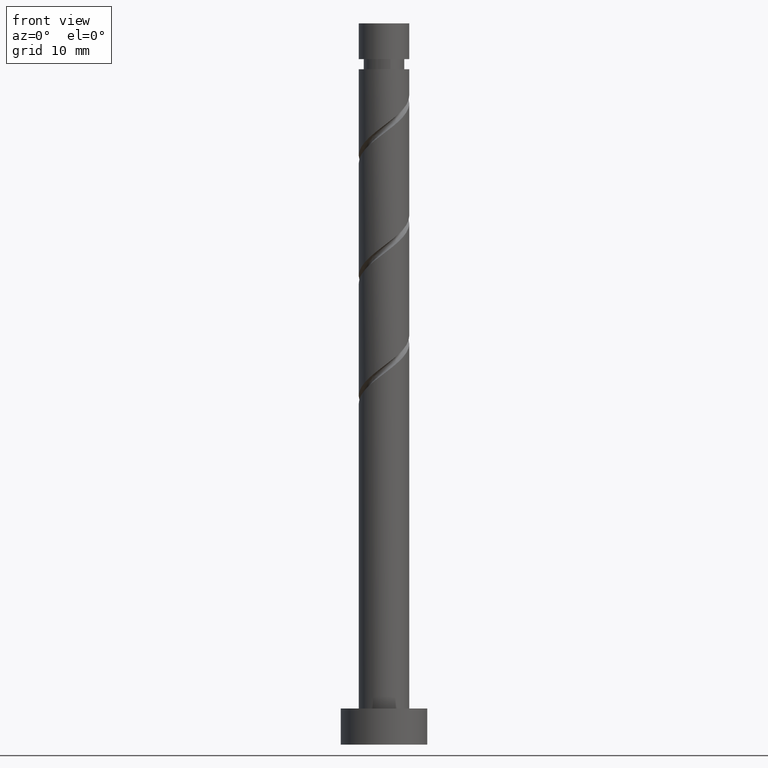
[diagram: clean part render]
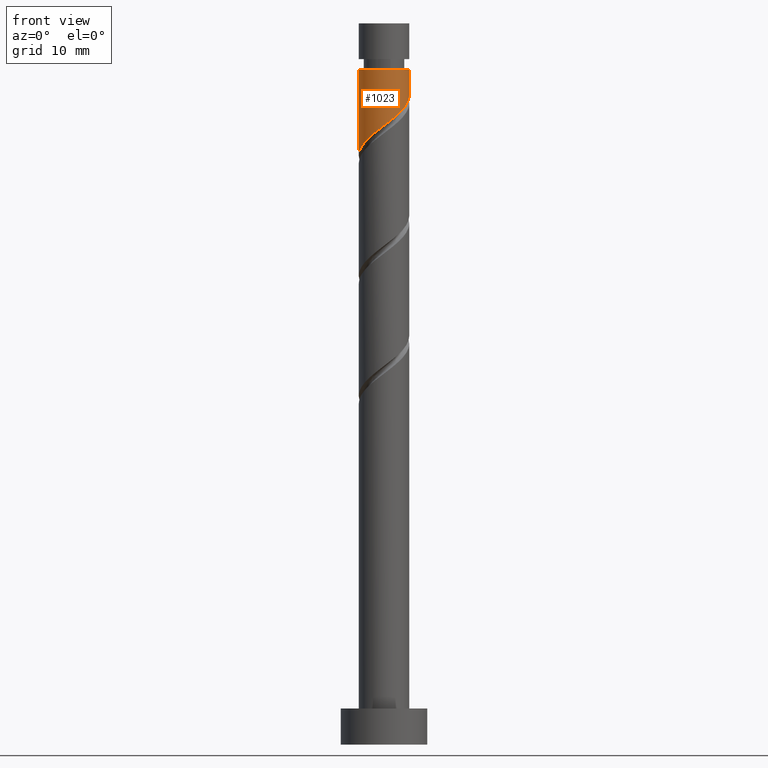
[diagram: same view with one face highlighted and labeled with its STEP entity id]
A machine part, front view. The second image highlights one B-rep face of the part: STEP entity #1023.
In plain terms, the highlighted cylindrical surface (edge-blend (fillet) strip) has radius 3.5 mm, axis along (-0, -0, -1).
Its self-contained STEP definition (entity closure, byte-faithful):
#8 = DIRECTION ( 'NONE',  ( -0.000000000000000000, -0.000000000000000000, -1.000000000000000000 ) ) ;
#19 = CARTESIAN_POINT ( 'NONE',  ( 3.482913278768105414, -0.7072357054910403118, 89.47837389796589491 ) ) ;
#20 = LINE ( 'NONE', #456, #200 ) ;
#111 = VERTEX_POINT ( 'NONE', #930 ) ;
#123 = CARTESIAN_POINT ( 'NONE',  ( -3.499999999999999556, -1.673164253252106277E-15, 81.67589545295463438 ) ) ;
#173 = CARTESIAN_POINT ( 'NONE',  ( 3.500000000000000000, 4.286263797015736595E-16, 100.0000000000000000 ) ) ;
#180 = EDGE_CURVE ( 'NONE', #1426, #111, #627, .T. ) ;
#200 = VECTOR ( 'NONE', #922, 1000.000000000000000 ) ;
#203 = EDGE_CURVE ( 'NONE', #111, #1111, #20, .T. ) ;
#222 = CARTESIAN_POINT ( 'NONE',  ( 0.5186414449104012059, -3.461359711388177107, 86.23763315722511891 ) ) ;
#286 = CARTESIAN_POINT ( 'NONE',  ( 3.500000000000000000, 4.257605465864734733E-16, 90.00922878628793455 ) ) ;
#376 =( BOUNDED_CURVE ( )  B_SPLINE_CURVE ( 2, ( #286, #533, #539, #19, #1276, #1011, #1383, #1252, #1170, #1145, #222, #1363, #1002, #879, #1269, #911, #1137, #1396, #1162, #1470, #123 ),
 .UNSPECIFIED., .F., .T. ) 
 B_SPLINE_CURVE_WITH_KNOTS ( ( 3, 2, 2, 2, 2, 2, 2, 2, 2, 2, 3 ),
 ( 0.3045248053855291182, 0.3055555555555555802, 0.3194444444444444198, 0.3333333333333333148, 0.3472222222222222099, 0.3611111111111111049, 0.3750000000000000000, 0.3888888888888888951, 0.4027777777777777901, 0.4166666666666666852, 0.4295248053855291737 ),
 .UNSPECIFIED. ) 
 CURVE ( )  GEOMETRIC_REPRESENTATION_ITEM ( )  RATIONAL_B_SPLINE_CURVE ( ( 0.9071930855141198125, 0.9080659294509674240, 0.9090909090909075063, 0.8952797754656419693, 0.9090909090909075063, 0.8952797754656419693, 0.9090909090909075063, 0.8952797754656419693, 0.9090909090909075063, 0.8952797754656419693, 0.9090909090909075063, 0.8952797754656419693, 0.9090909090909075063, 0.8952797754656419693, 0.9090909090909075063, 0.8952797754656419693, 0.9090909090909075063, 0.8952797754656419693, 0.9090909090909075063, 0.8963047551055819406, 0.9071930855141200345 ) ) 
 REPRESENTATION_ITEM ( '' )  );
#404 = AXIS2_PLACEMENT_3D ( 'NONE', #558, #8, #447 ) ;
#419 = VERTEX_POINT ( 'NONE', #703 ) ;
#447 = DIRECTION ( 'NONE',  ( -1.000000000000000000, 0.000000000000000000, 0.000000000000000000 ) ) ;
#456 = CARTESIAN_POINT ( 'NONE',  ( -3.500000000000000000, 0.000000000000000000, 100.0000000000000000 ) ) ;
#533 = CARTESIAN_POINT ( 'NONE',  ( 3.500000000000000000, -0.04515586016207687181, 89.97521141235557707 ) ) ;
#539 = CARTESIAN_POINT ( 'NONE',  ( 3.498835021510410925, -0.09029669015107281982, 89.94133686092878577 ) ) ;
#558 = CARTESIAN_POINT ( 'NONE',  ( 0.000000000000000000, 0.000000000000000000, 100.0000000000000000 ) ) ;
#627 = CIRCLE ( 'NONE', #1018, 3.500000000000001332 ) ;
#703 = CARTESIAN_POINT ( 'NONE',  ( 3.500000000000000000, 4.257605465864734733E-16, 90.00922878628793455 ) ) ;
#706 = EDGE_CURVE ( 'NONE', #1426, #419, #1319, .T. ) ;
#736 = ORIENTED_EDGE ( 'NONE', *, *, #203, .T. ) ;
#879 = CARTESIAN_POINT ( 'NONE',  ( -1.301292749804670690, -3.307189808560494715, 84.84874426833623318 ) ) ;
#887 = VECTOR ( 'NONE', #1184, 1000.000000000000000 ) ;
#897 = CYLINDRICAL_SURFACE ( 'NONE', #404, 3.500000000000000000 ) ;
#901 = DIRECTION ( 'NONE',  ( -0.000000000000000000, -0.000000000000000000, -1.000000000000000000 ) ) ;
#911 = CARTESIAN_POINT ( 'NONE',  ( -2.353940726802702610, -2.662673525845811184, 83.92281834241032357 ) ) ;
#922 = DIRECTION ( 'NONE',  ( -0.000000000000000000, -0.000000000000000000, -1.000000000000000000 ) ) ;
#930 = CARTESIAN_POINT ( 'NONE',  ( -3.500000000000001776, 0.000000000000000000, 93.64504056463253789 ) ) ;
#934 = CARTESIAN_POINT ( 'NONE',  ( -3.499999999999999556, -1.673164253252106277E-15, 81.67589545295463438 ) ) ;
#1002 = CARTESIAN_POINT ( 'NONE',  ( -0.6964912059746346529, -3.429999999999998828, 85.31170723129920930 ) ) ;
#1011 = CARTESIAN_POINT ( 'NONE',  ( 3.030979049538565118, -1.855810672401390526, 88.55244797203997109 ) ) ;
#1018 = AXIS2_PLACEMENT_3D ( 'NONE', #1163, #901, #1374 ) ;
#1023 = ADVANCED_FACE ( 'NONE', ( #1159 ), #897, .T. ) ;
#1061 = CARTESIAN_POINT ( 'NONE',  ( 3.500000000000001776, 4.286263797015738074E-16, 93.64504056463253789 ) ) ;
#1111 = VERTEX_POINT ( 'NONE', #934 ) ;
#1137 = CARTESIAN_POINT ( 'NONE',  ( -2.738304719242933949, -2.179836522441962909, 83.45985537944734745 ) ) ;
#1145 = CARTESIAN_POINT ( 'NONE',  ( 1.128972551965401916, -3.369909231336850830, 86.70059612018809503 ) ) ;
#1159 = FACE_OUTER_BOUND ( 'NONE', #1291, .T. ) ;
#1162 = CARTESIAN_POINT ( 'NONE',  ( -3.318712737967940640, -1.111820922113505361, 82.53392945352142362 ) ) ;
#1163 = CARTESIAN_POINT ( 'NONE',  ( 0.000000000000000000, 0.000000000000000000, 93.64504056463253789 ) ) ;
#1170 = CARTESIAN_POINT ( 'NONE',  ( 1.671218283206725053, -3.075228357354224062, 87.16355908315102852 ) ) ;
#1184 = DIRECTION ( 'NONE',  ( -0.000000000000000000, -0.000000000000000000, -1.000000000000000000 ) ) ;
#1191 = ORIENTED_EDGE ( 'NONE', *, *, #180, .T. ) ;
#1208 = ORIENTED_EDGE ( 'NONE', *, *, #706, .F. ) ;
#1252 = CARTESIAN_POINT ( 'NONE',  ( 2.213464014448047745, -2.780547483371599071, 87.62652204611401885 ) ) ;
#1269 = CARTESIAN_POINT ( 'NONE',  ( -1.827616738303686095, -2.984931667203152728, 84.38578130537324284 ) ) ;
#1276 = CARTESIAN_POINT ( 'NONE',  ( 3.256946164153335044, -1.281523188946213532, 89.01541093500287616 ) ) ;
#1291 = EDGE_LOOP ( 'NONE', ( #1208, #1191, #736, #1321 ) ) ;
#1319 = LINE ( 'NONE', #173, #887 ) ;
#1321 = ORIENTED_EDGE ( 'NONE', *, *, #1324, .F. ) ;
#1324 = EDGE_CURVE ( 'NONE', #419, #1111, #376, .T. ) ;
#1363 = CARTESIAN_POINT ( 'NONE',  ( -0.09168966214460079478, -3.552810191439505605, 85.77467019426218542 ) ) ;
#1374 = DIRECTION ( 'NONE',  ( -1.000000000000000000, 0.000000000000000000, 0.000000000000000000 ) ) ;
#1383 = CARTESIAN_POINT ( 'NONE',  ( 2.622221531993305987, -2.318179077886494355, 88.08948500907695234 ) ) ;
#1396 = CARTESIAN_POINT ( 'NONE',  ( -3.122668711683164844, -1.696999519038117521, 82.99689241648441396 ) ) ;
#1426 = VERTEX_POINT ( 'NONE', #1061 ) ;
#1470 = CARTESIAN_POINT ( 'NONE',  ( -3.500000000000000888, -0.5706903013715931561, 82.10581496532026335 ) ) ;